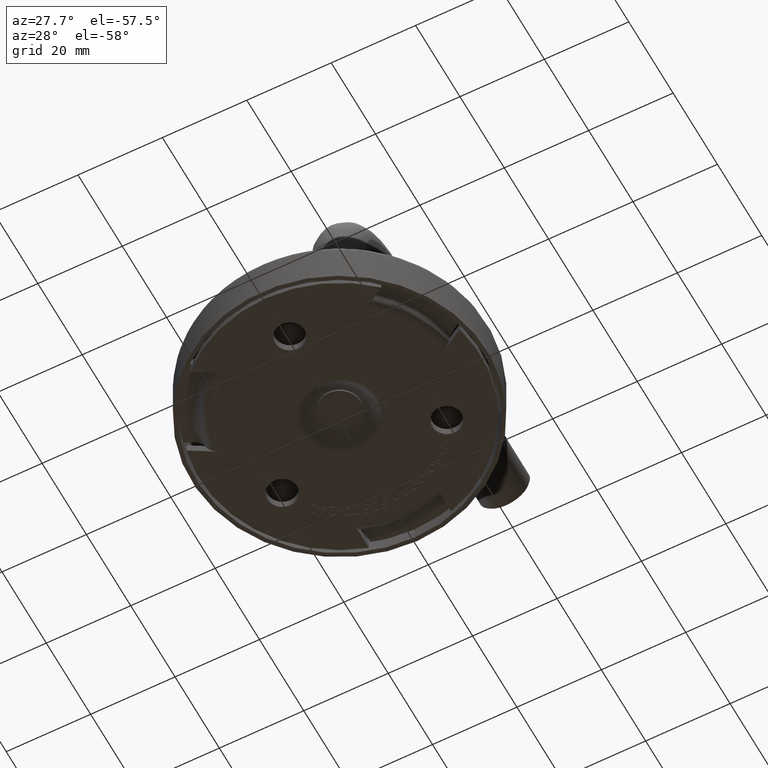
[diagram: clean part render]
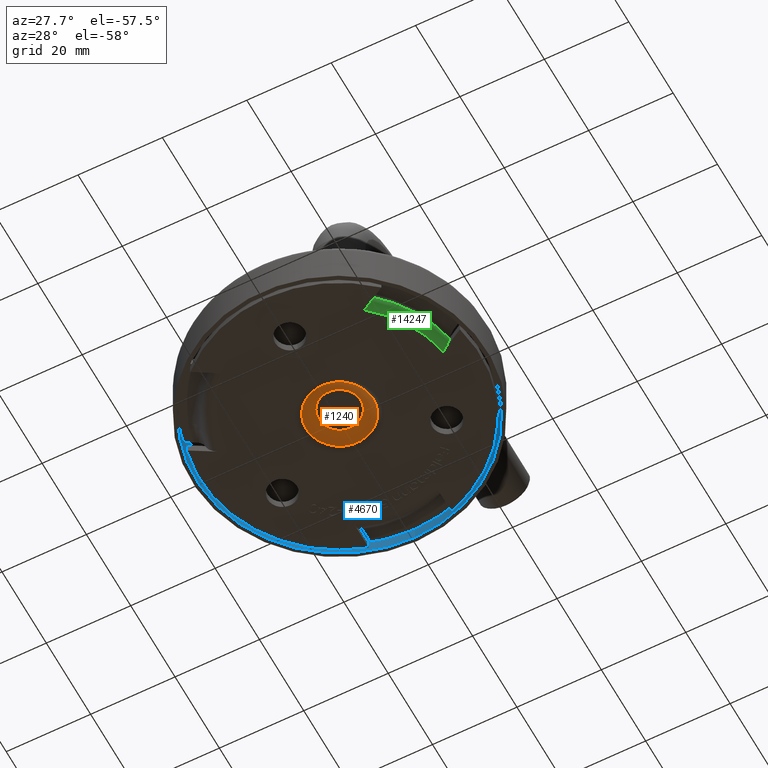
[diagram: same view with three faces highlighted in distinct colors, each labeled with its STEP entity id]
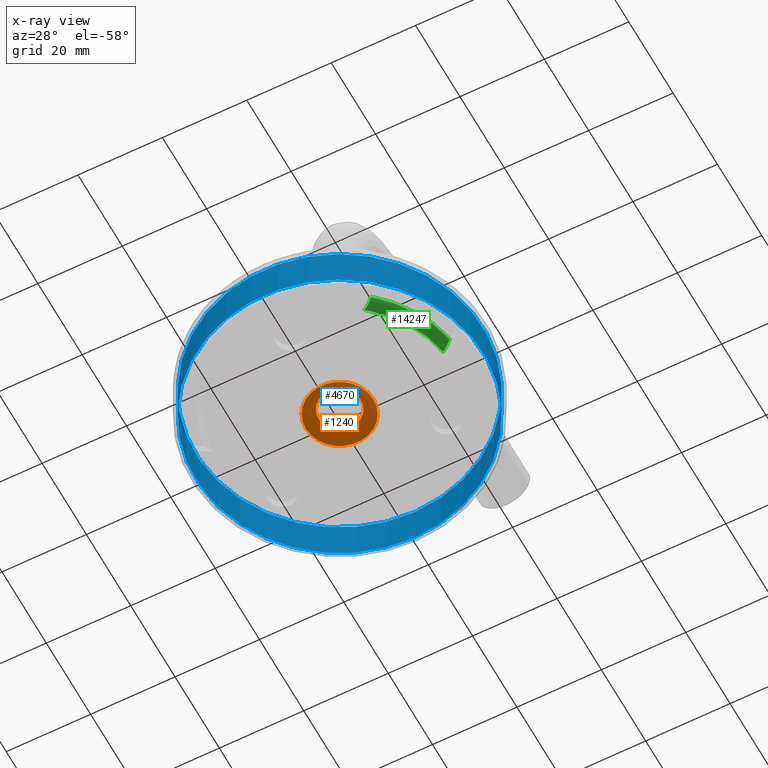
[diagram: x-ray of the same camera — body ghosted, the three highlighted faces saturated]
A machine part, auxiliary view with three faces highlighted in distinct colors.
The next image is the same camera in x-ray (body ghosted, the three faces saturated) — at least one of them is partly hidden behind the body in this view.
Their STEP definitions:

[orange] entity #1240 — the highlighted toroidal blend (fillet) surface has major radius 4.2205 mm and minor (blend) radius 4.8 mm.
#90 = DIRECTION ( 'NONE',  ( 3.471416353821137800E-030, 6.902532920683880400E-031, -1.000000000000000000 ) ) ;
#93 = VERTEX_POINT ( 'NONE', #15060 ) ;
#1240 = ADVANCED_FACE ( 'NONE', ( #1838, #14162 ), #12604, .F. ) ;
#1838 = FACE_OUTER_BOUND ( 'NONE', #7691, .T. ) ;
#2706 = EDGE_CURVE ( 'NONE', #4631, #4631, #15403, .T. ) ;
#4610 = CARTESIAN_POINT ( 'NONE',  ( -6.942832707642100500E-030, -1.380506584136743000E-030, 1.999999999999950900 ) ) ;
#4631 = VERTEX_POINT ( 'NONE', #5132 ) ;
#4933 = CARTESIAN_POINT ( 'NONE',  ( 9.498758566764790800E-030, 1.888724573200536500E-030, -2.736277530152534600 ) ) ;
#5132 = CARTESIAN_POINT ( 'NONE',  ( -7.999999999999901400, -2.142621862776628200E-029, -0.9589041095890172800 ) ) ;
#5566 = ORIENTED_EDGE ( 'NONE', *, *, #14244, .T. ) ;
#5728 = DIRECTION ( 'NONE',  ( -1.000000000000000000, -2.761013168273535400E-030, -3.471416353821137800E-030 ) ) ;
#6601 = CARTESIAN_POINT ( 'NONE',  ( 3.328755407773613200E-030, 6.618867184217251900E-031, -0.9589041095890172800 ) ) ;
#7408 = AXIS2_PLACEMENT_3D ( 'NONE', #4610, #8300, #5728 ) ;
#7691 = EDGE_LOOP ( 'NONE', ( #5566 ) ) ;
#7706 = ORIENTED_EDGE ( 'NONE', *, *, #2706, .F. ) ;
#8300 = DIRECTION ( 'NONE',  ( 3.471416353821137800E-030, 6.902532920683880400E-031, -1.000000000000000000 ) ) ;
#8719 = DIRECTION ( 'NONE',  ( 1.000000000000000000, 2.761013168273534700E-030, 0.0000000000000000000 ) ) ;
#8942 = DIRECTION ( 'NONE',  ( 3.471416353821137800E-030, 6.902532920683880400E-031, -1.000000000000000000 ) ) ;
#10183 = DIRECTION ( 'NONE',  ( -1.000000000000000000, -2.761013168273534700E-030, 0.0000000000000000000 ) ) ;
#11549 = EDGE_LOOP ( 'NONE', ( #7706 ) ) ;
#12604 = TOROIDAL_SURFACE ( 'NONE', #7408, 4.220464781185778100, 4.799999999999998900 ) ;
#13231 = AXIS2_PLACEMENT_3D ( 'NONE', #6601, #8942, #10183 ) ;
#13285 = AXIS2_PLACEMENT_3D ( 'NONE', #4933, #90, #8719 ) ;
#14162 = FACE_OUTER_BOUND ( 'NONE', #11549, .T. ) ;
#14244 = EDGE_CURVE ( 'NONE', #93, #93, #15809, .T. ) ;
#15060 = CARTESIAN_POINT ( 'NONE',  ( 4.999999999999937800, 1.569379041456804000E-029, -2.736277530152534600 ) ) ;
#15403 = CIRCLE ( 'NONE', #13231, 7.999999999999901400 ) ;
#15809 = CIRCLE ( 'NONE', #13285, 4.999999999999937800 ) ;

[blue] entity #4670 — the highlighted cylindrical surface (bore or boss wall) has radius 34 mm, axis along (0, 0, -1).
#384 = CARTESIAN_POINT ( 'NONE',  ( 0.0000000000000000000, -1.224646799147354000E-015, 10.00000000000000400 ) ) ;
#479 = AXIS2_PLACEMENT_3D ( 'NONE', #3874, #3825, #8697 ) ;
#500 = AXIS2_PLACEMENT_3D ( 'NONE', #384, #1593, #12716 ) ;
#1263 = VERTEX_POINT ( 'NONE', #4157 ) ;
#1331 = CIRCLE ( 'NONE', #500, 34.00000000000000000 ) ;
#1593 = DIRECTION ( 'NONE',  ( -0.0000000000000000000, 1.224646799147353500E-016, -1.000000000000000000 ) ) ;
#1701 = CYLINDRICAL_SURFACE ( 'NONE', #8249, 34.00000000000000000 ) ;
#1910 = DIRECTION ( 'NONE',  ( 0.0000000000000000000, 1.000000000000000000, 1.224646799147353500E-016 ) ) ;
#1928 = EDGE_CURVE ( 'NONE', #9627, #9627, #6202, .T. ) ;
#2435 = ORIENTED_EDGE ( 'NONE', *, *, #15037, .F. ) ;
#2784 = ORIENTED_EDGE ( 'NONE', *, *, #1928, .T. ) ;
#3825 = DIRECTION ( 'NONE',  ( -0.0000000000000000000, 1.224646799147353500E-016, -1.000000000000000000 ) ) ;
#3874 = CARTESIAN_POINT ( 'NONE',  ( 0.0000000000000000000, -5.099183261050318100E-031, 4.163799117101001300E-015 ) ) ;
#4157 = CARTESIAN_POINT ( 'NONE',  ( 0.0000000000000000000, 34.00000000000000000, 10.00000000000000700 ) ) ;
#4670 = ADVANCED_FACE ( 'NONE', ( #5021, #11531 ), #1701, .F. ) ;
#5021 = FACE_OUTER_BOUND ( 'NONE', #11935, .T. ) ;
#5078 = EDGE_LOOP ( 'NONE', ( #2784 ) ) ;
#6202 = CIRCLE ( 'NONE', #479, 34.00000000000000000 ) ;
#7022 = DIRECTION ( 'NONE',  ( -0.0000000000000000000, 1.224646799147353500E-016, -1.000000000000000000 ) ) ;
#8249 = AXIS2_PLACEMENT_3D ( 'NONE', #12927, #7022, #1910 ) ;
#8697 = DIRECTION ( 'NONE',  ( 0.0000000000000000000, 1.000000000000000000, 1.224646799147353500E-016 ) ) ;
#9627 = VERTEX_POINT ( 'NONE', #9951 ) ;
#9951 = CARTESIAN_POINT ( 'NONE',  ( 0.0000000000000000000, 34.00000000000000000, 8.327598234202002700E-015 ) ) ;
#11531 = FACE_OUTER_BOUND ( 'NONE', #5078, .T. ) ;
#11935 = EDGE_LOOP ( 'NONE', ( #2435 ) ) ;
#12716 = DIRECTION ( 'NONE',  ( 0.0000000000000000000, 1.000000000000000000, 1.020425574104004100E-016 ) ) ;
#12927 = CARTESIAN_POINT ( 'NONE',  ( 0.0000000000000000000, 0.0000000000000000000, 0.0000000000000000000 ) ) ;
#15037 = EDGE_CURVE ( 'NONE', #1263, #1263, #1331, .T. ) ;

[green] entity #14247 — the highlighted toroidal blend (fillet) surface has major radius 27 mm and minor (blend) radius 2.5 mm.
#139 = EDGE_CURVE ( 'NONE', #14358, #11780, #2902, .T. ) ;
#705 = CARTESIAN_POINT ( 'NONE',  ( -27.15789152557939800, -4.421285733718485200, -0.05028959223706409900 ) ) ;
#1417 = CARTESIAN_POINT ( 'NONE',  ( -17.52428289049775900, -21.37597969338150200, -0.08011036018027957500 ) ) ;
#1522 = CARTESIAN_POINT ( 'NONE',  ( -18.08372789324876400, -21.69897541631659300, -0.3289154268042682200 ) ) ;
#1636 = CARTESIAN_POINT ( 'NONE',  ( -17.86655907746434500, -21.57359294206386100, -0.2098728989195307300 ) ) ;
#1964 = CARTESIAN_POINT ( 'NONE',  ( -26.79998553569129500, -4.214648614112000800, 8.283982224146981600E-014 ) ) ;
#2333 = FACE_OUTER_BOUND ( 'NONE', #9516, .T. ) ;
#2591 = DIRECTION ( 'NONE',  ( -1.000000000000000000, -2.761013168273535000E-030, -3.471416353821137800E-030 ) ) ;
#2732 = DIRECTION ( 'NONE',  ( -1.000000000000000000, -2.761013168273535000E-030, 3.471416353821110500E-030 ) ) ;
#2763 = VERTEX_POINT ( 'NONE', #13065 ) ;
#2889 = CIRCLE ( 'NONE', #10930, 26.99999999999966200 ) ;
#2902 = B_SPLINE_CURVE_WITH_KNOTS ( 'NONE', 3,
 ( #11911, #1964, #3329, #705, #3226, #14396, #8085, #11970, #7024, #9437, #11857, #5684, #4503, #14229 ),
 .UNSPECIFIED., .F., .F.,
 ( 4, 2, 2, 2, 2, 2, 4 ),
 ( 0.003333664579546621700, 0.003747166311686336200, 0.004160668043826050600, 0.004574169775965765100, 0.004987671508105480400, 0.005814674972384916200, 0.006641678436664352900 ),
 .UNSPECIFIED. ) ;
#3226 = CARTESIAN_POINT ( 'NONE',  ( -27.27428289049763400, -4.488484319585373000, -0.08011036018030391600 ) ) ;
#3329 = CARTESIAN_POINT ( 'NONE',  ( -26.92123916071007300, -4.284654427156819000, -0.01020273115360767700 ) ) ;
#3377 = DIRECTION ( 'NONE',  ( 3.471416353821137800E-030, 6.902532920683880400E-031, -1.000000000000000000 ) ) ;
#4503 = CARTESIAN_POINT ( 'NONE',  ( -28.81535932879867400, -5.378225216080266200, -1.511171601879595100 ) ) ;
#5684 = CARTESIAN_POINT ( 'NONE',  ( -28.70101041505554200, -5.312205839949131200, -1.261679151299215600 ) ) ;
#5727 = B_SPLINE_CURVE_WITH_KNOTS ( 'NONE', 3,
 ( #14397, #9001, #7652, #11315, #1417, #14983, #1636, #1522, #10240, #10138, #13735, #7549, #13847, #8791 ),
 .UNSPECIFIED., .F., .F.,
 ( 4, 2, 2, 2, 2, 2, 4 ),
 ( 0.003333664579546503700, 0.003747166311686233400, 0.004160668043825963000, 0.004574169775965692200, 0.004987671508105421400, 0.005814674972384880700, 0.006641678436664339900 ),
 .UNSPECIFIED. ) ;
#5734 = ORIENTED_EDGE ( 'NONE', *, *, #139, .T. ) ;
#7024 = CARTESIAN_POINT ( 'NONE',  ( -27.93730469056808400, -4.871280134334638100, -0.3973551638352749700 ) ) ;
#7526 = AXIS2_PLACEMENT_3D ( 'NONE', #10664, #3377, #8301 ) ;
#7549 = CARTESIAN_POINT ( 'NONE',  ( -18.95101041505572000, -22.19970121374528600, -1.261679151299159900 ) ) ;
#7597 = ORIENTED_EDGE ( 'NONE', *, *, #15072, .T. ) ;
#7652 = CARTESIAN_POINT ( 'NONE',  ( -17.17123916071020100, -21.17214980095294400, -0.01020273115359699400 ) ) ;
#8085 = CARTESIAN_POINT ( 'NONE',  ( -27.61655907746419600, -4.686097568267721900, -0.2098728989195620700 ) ) ;
#8114 = ORIENTED_EDGE ( 'NONE', *, *, #9510, .F. ) ;
#8301 = DIRECTION ( 'NONE',  ( -1.000000000000000000, -2.761013168273535000E-030, 0.0000000000000000000 ) ) ;
#8791 = CARTESIAN_POINT ( 'NONE',  ( -19.13921220495684800, -22.30835956780675000, -1.777777777777730800 ) ) ;
#8829 = CARTESIAN_POINT ( 'NONE',  ( -28.88921220495685900, -5.420864194010471600, -1.777777777777730400 ) ) ;
#9001 = CARTESIAN_POINT ( 'NONE',  ( -17.04998553569139500, -21.10214398790813200, 8.849217897761690100E-014 ) ) ;
#9090 = VERTEX_POINT ( 'NONE', #13761 ) ;
#9437 = CARTESIAN_POINT ( 'NONE',  ( -28.23297647628108100, -5.041986319407814500, -0.6294935080456904900 ) ) ;
#9510 = EDGE_CURVE ( 'NONE', #2763, #9090, #5727, .T. ) ;
#9516 = EDGE_LOOP ( 'NONE', ( #7597, #5734, #15734, #8114 ) ) ;
#9685 = AXIS2_PLACEMENT_3D ( 'NONE', #9850, #9954, #2591 ) ;
#9850 = CARTESIAN_POINT ( 'NONE',  ( 8.678540884552658500E-030, 1.725633230170932500E-030, -2.499999999999951600 ) ) ;
#9954 = DIRECTION ( 'NONE',  ( 3.471416353821137800E-030, 6.902532920683880400E-031, -1.000000000000000000 ) ) ;
#10138 = CARTESIAN_POINT ( 'NONE',  ( -18.48297647628123000, -21.92948169320396400, -0.6294935080456365300 ) ) ;
#10220 = CARTESIAN_POINT ( 'NONE',  ( -26.67988764015956300, -4.145310061797506100, 9.547831218895958100E-029 ) ) ;
#10240 = CARTESIAN_POINT ( 'NONE',  ( -18.18730469056823300, -21.75877550813078200, -0.3973551638352326200 ) ) ;
#10664 = CARTESIAN_POINT ( 'NONE',  ( 6.171406851237423000E-030, 1.227116963677100800E-030, -1.777777777777729300 ) ) ;
#10930 = AXIS2_PLACEMENT_3D ( 'NONE', #13809, #15153, #2732 ) ;
#11284 = EDGE_CURVE ( 'NONE', #9090, #11780, #13956, .T. ) ;
#11315 = CARTESIAN_POINT ( 'NONE',  ( -17.40789152557951900, -21.30878110751460900, -0.05028959223704417000 ) ) ;
#11780 = VERTEX_POINT ( 'NONE', #8829 ) ;
#11857 = CARTESIAN_POINT ( 'NONE',  ( -28.41206418050935400, -5.145382653652561100, -0.8236414083473996300 ) ) ;
#11911 = CARTESIAN_POINT ( 'NONE',  ( -26.67988764015956300, -4.145310061797506100, 9.547831218895958100E-029 ) ) ;
#11970 = CARTESIAN_POINT ( 'NONE',  ( -27.83372789324862100, -4.811480042520448900, -0.3289154268043068000 ) ) ;
#13065 = CARTESIAN_POINT ( 'NONE',  ( -16.92988764015957100, -21.03280543559379000, 7.328865201575651400E-029 ) ) ;
#13735 = CARTESIAN_POINT ( 'NONE',  ( -18.66206418050952800, -22.03287802744872100, -0.8236414083473599900 ) ) ;
#13761 = CARTESIAN_POINT ( 'NONE',  ( -19.13921220495684800, -22.30835956780675000, -1.777777777777730800 ) ) ;
#13809 = CARTESIAN_POINT ( 'NONE',  ( 0.0000000000000000000, 0.0000000000000000000, 0.0000000000000000000 ) ) ;
#13847 = CARTESIAN_POINT ( 'NONE',  ( -19.06535932879885900, -22.26572058987643700, -1.511171601879554900 ) ) ;
#13956 = CIRCLE ( 'NONE', #7526, 29.39340658094830500 ) ;
#14229 = CARTESIAN_POINT ( 'NONE',  ( -28.88921220495685900, -5.420864194010471600, -1.777777777777730400 ) ) ;
#14247 = ADVANCED_FACE ( 'NONE', ( #2333 ), #15033, .T. ) ;
#14358 = VERTEX_POINT ( 'NONE', #10220 ) ;
#14396 = CARTESIAN_POINT ( 'NONE',  ( -27.50313457422438300, -4.620611900789511700, -0.1596169034016958500 ) ) ;
#14397 = CARTESIAN_POINT ( 'NONE',  ( -16.92988764015957100, -21.03280543559379000, 7.328865201575651400E-029 ) ) ;
#14983 = CARTESIAN_POINT ( 'NONE',  ( -17.75313457422451400, -21.50810727458564700, -0.1596169034016625100 ) ) ;
#15033 = TOROIDAL_SURFACE ( 'NONE', #9685, 27.00000000000000000, 2.500000000000000000 ) ;
#15072 = EDGE_CURVE ( 'NONE', #2763, #14358, #2889, .T. ) ;
#15153 = DIRECTION ( 'NONE',  ( 3.471416353821137800E-030, 6.902532920683880400E-031, -1.000000000000000000 ) ) ;
#15734 = ORIENTED_EDGE ( 'NONE', *, *, #11284, .F. ) ;